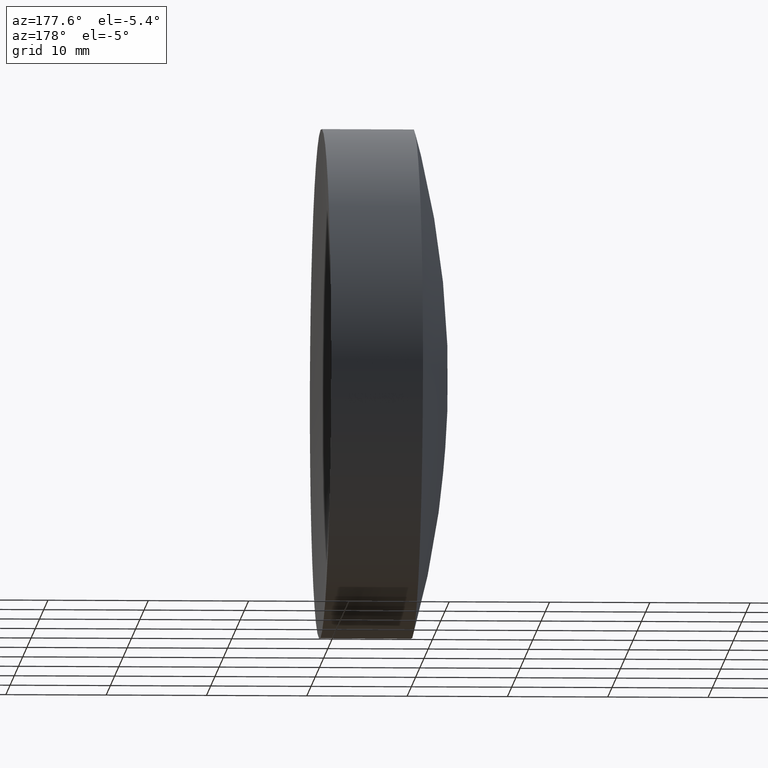
[diagram: clean part render]
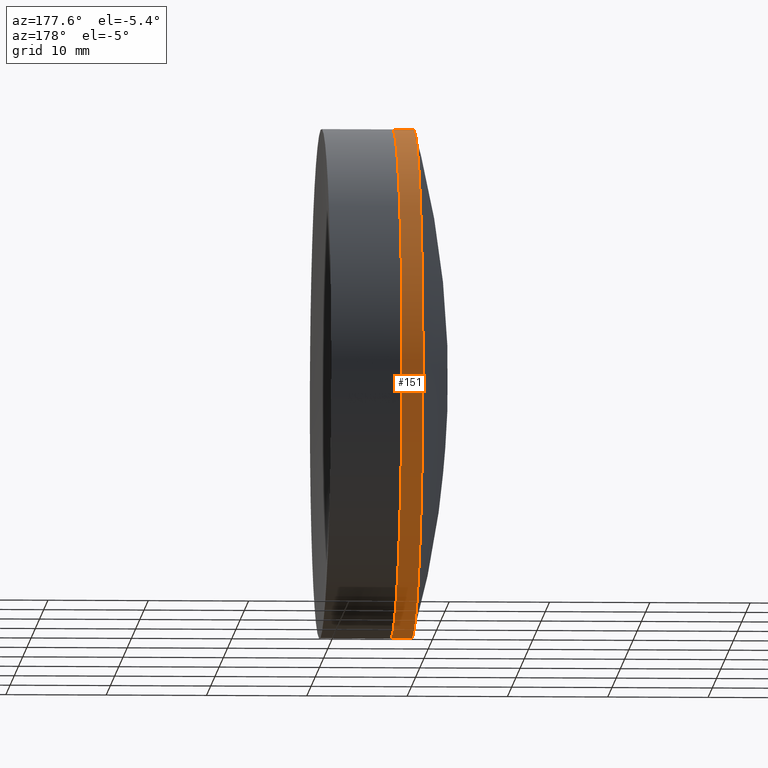
[diagram: same view with one face highlighted and labeled with its STEP entity id]
A machine part, auxiliary view. The second image highlights one B-rep face of the part: STEP entity #151.
In plain terms, the highlighted cylindrical surface (partial cylindrical patch) has radius 25.4 mm, axis along (-1, -0, -0).
Its self-contained STEP definition (entity closure, byte-faithful):
#28 = AXIS2_PLACEMENT_3D ( 'NONE', #196, #117, #81 ) ;
#39 = LINE ( 'NONE', #195, #194 ) ;
#44 = VERTEX_POINT ( 'NONE', #223 ) ;
#45 = DIRECTION ( 'NONE',  ( -1.000000000000000000, -0.0000000000000000000, -0.0000000000000000000 ) ) ;
#46 = EDGE_CURVE ( 'NONE', #44, #228, #269, .T. ) ;
#69 = CARTESIAN_POINT ( 'NONE',  ( 153.6621801840200900, 3.110602869834273700E-015, -25.39999999999997000 ) ) ;
#81 = DIRECTION ( 'NONE',  ( 0.0000000000000000000, 0.0000000000000000000, 1.000000000000000000 ) ) ;
#84 = DIRECTION ( 'NONE',  ( -1.000000000000000000, -0.0000000000000000000, -0.0000000000000000000 ) ) ;
#95 = CARTESIAN_POINT ( 'NONE',  ( -0.8160621761658039000, 0.0000000000000000000, 25.39999999999997000 ) ) ;
#102 = DIRECTION ( 'NONE',  ( -1.000000000000000000, -0.0000000000000000000, -0.0000000000000000000 ) ) ;
#109 = CARTESIAN_POINT ( 'NONE',  ( -0.8160621761658039000, 0.0000000000000000000, 0.0000000000000000000 ) ) ;
#115 = CIRCLE ( 'NONE', #210, 25.39999999999997000 ) ;
#117 = DIRECTION ( 'NONE',  ( -1.000000000000000000, -0.0000000000000000000, -0.0000000000000000000 ) ) ;
#132 = FACE_OUTER_BOUND ( 'NONE', #319, .T. ) ;
#139 = VERTEX_POINT ( 'NONE', #69 ) ;
#145 = ORIENTED_EDGE ( 'NONE', *, *, #286, .F. ) ;
#151 = ADVANCED_FACE ( 'NONE', ( #132 ), #291, .T. ) ;
#156 = AXIS2_PLACEMENT_3D ( 'NONE', #109, #45, #244 ) ;
#170 = ORIENTED_EDGE ( 'NONE', *, *, #329, .T. ) ;
#194 = VECTOR ( 'NONE', #102, 1000.000000000000000 ) ;
#195 = CARTESIAN_POINT ( 'NONE',  ( -0.8160621761658039000, 3.110602869834273700E-015, -25.39999999999997000 ) ) ;
#196 = CARTESIAN_POINT ( 'NONE',  ( 153.6621801840200900, 0.0000000000000000000, 0.0000000000000000000 ) ) ;
#204 = VECTOR ( 'NONE', #314, 1000.000000000000000 ) ;
#210 = AXIS2_PLACEMENT_3D ( 'NONE', #261, #84, #224 ) ;
#216 = EDGE_CURVE ( 'NONE', #44, #139, #255, .T. ) ;
#218 = CARTESIAN_POINT ( 'NONE',  ( 151.5808072753462700, 0.0000000000000000000, 25.39999999999994900 ) ) ;
#220 = ORIENTED_EDGE ( 'NONE', *, *, #216, .T. ) ;
#223 = CARTESIAN_POINT ( 'NONE',  ( 153.6621801840200900, 0.0000000000000000000, 25.39999999999997000 ) ) ;
#224 = DIRECTION ( 'NONE',  ( 0.0000000000000000000, 0.0000000000000000000, 1.000000000000000000 ) ) ;
#228 = VERTEX_POINT ( 'NONE', #218 ) ;
#244 = DIRECTION ( 'NONE',  ( 0.0000000000000000000, 0.0000000000000000000, 1.000000000000000000 ) ) ;
#250 = CARTESIAN_POINT ( 'NONE',  ( 151.5808072753462700, 3.110602869834271300E-015, -25.40000000000002700 ) ) ;
#255 = CIRCLE ( 'NONE', #28, 25.39999999999997000 ) ;
#261 = CARTESIAN_POINT ( 'NONE',  ( 151.5808072753462500, 0.0000000000000000000, 0.0000000000000000000 ) ) ;
#265 = ORIENTED_EDGE ( 'NONE', *, *, #46, .F. ) ;
#269 = LINE ( 'NONE', #95, #204 ) ;
#274 = VERTEX_POINT ( 'NONE', #250 ) ;
#286 = EDGE_CURVE ( 'NONE', #228, #274, #115, .T. ) ;
#291 = CYLINDRICAL_SURFACE ( 'NONE', #156, 25.39999999999997000 ) ;
#314 = DIRECTION ( 'NONE',  ( -1.000000000000000000, -0.0000000000000000000, -0.0000000000000000000 ) ) ;
#319 = EDGE_LOOP ( 'NONE', ( #220, #170, #145, #265 ) ) ;
#329 = EDGE_CURVE ( 'NONE', #139, #274, #39, .T. ) ;